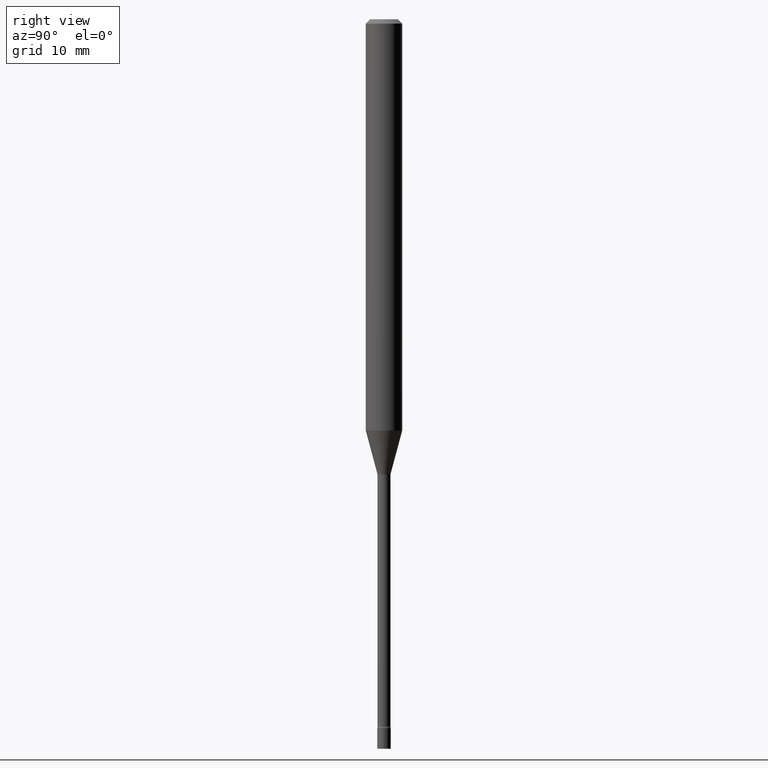
[diagram: clean part render]
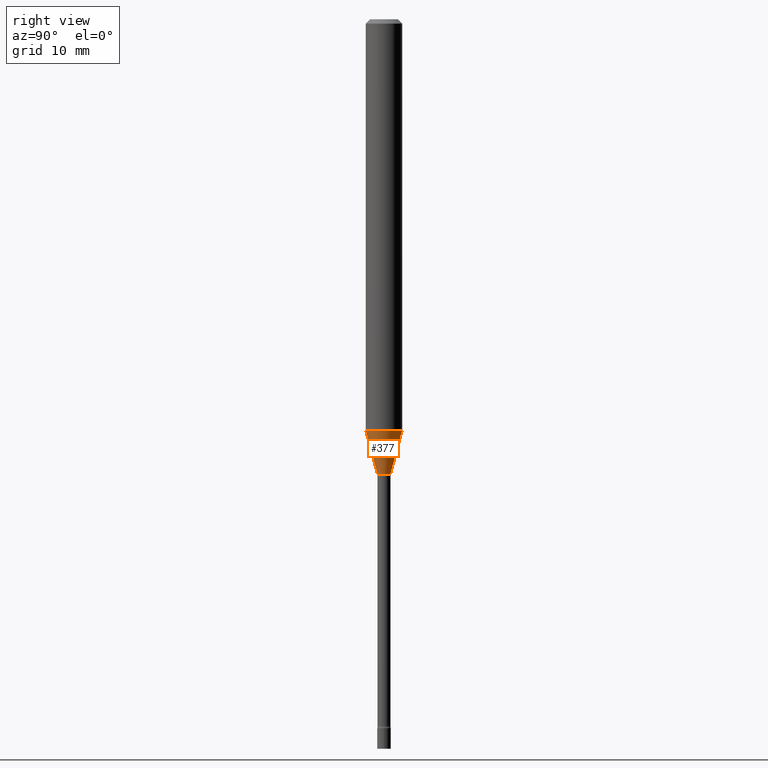
[diagram: same view with one face highlighted and labeled with its STEP entity id]
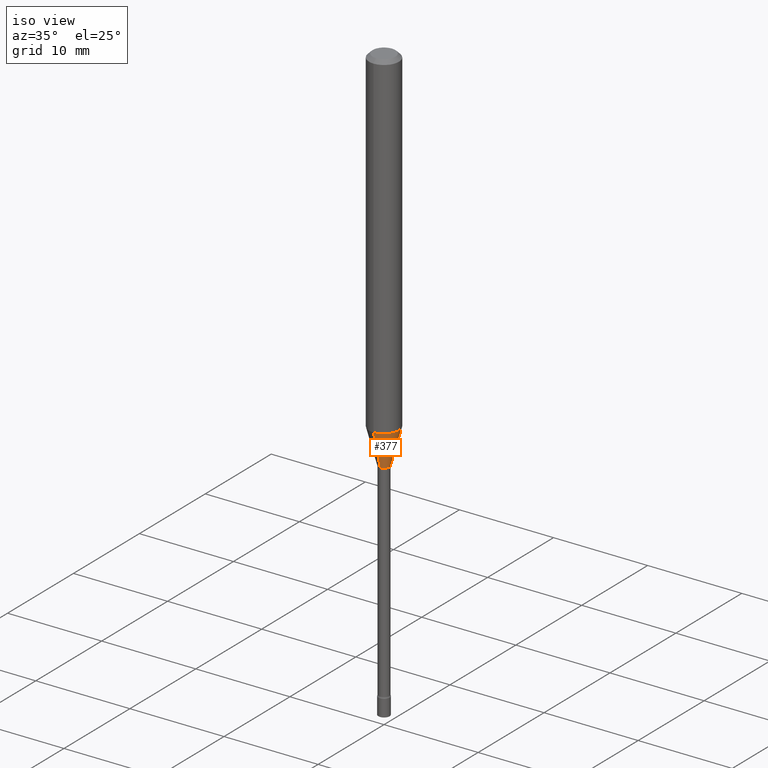
[diagram: same view with one face highlighted and labeled with its STEP entity id]
A machine part, right view. The second image highlights one B-rep face of the part: STEP entity #377.
A second angle (iso view) of the same face is appended — the face is thin or edge-on in the first view.
In plain terms, the highlighted conical surface has half-angle 15 deg.
Its self-contained STEP definition (entity closure, byte-faithful):
#20 = DIRECTION ( 'NONE',  ( -6.982962677686265922E-15, -1.000000000000000000, 4.370956789862821150E-15 ) ) ;
#34 = DIRECTION ( 'NONE',  ( -2.445459864664737566E-29, 3.491494143609276784E-15, 1.000000000000000000 ) ) ;
#40 = CARTESIAN_POINT ( 'NONE',  ( 3.023754139721085035E-16, 0.02261111260565855027, -1.558092501787273321 ) ) ;
#42 = VERTEX_POINT ( 'NONE', #300 ) ;
#60 = CARTESIAN_POINT ( 'NONE',  ( 1.606616180941198289E-16, 0.02261111260565855027, -1.558092501787273321 ) ) ;
#88 = VERTEX_POINT ( 'NONE', #146 ) ;
#100 = FACE_OUTER_BOUND ( 'NONE', #443, .T. ) ;
#102 = CIRCLE ( 'NONE', #403, 0.02261111260566398690 ) ;
#140 = CARTESIAN_POINT ( 'NONE',  ( 3.446203538179899442E-29, -4.920301349084003564E-15, -1.409225147374218112 ) ) ;
#146 = CARTESIAN_POINT ( 'NONE',  ( 4.440892098500968330E-16, 0.06249999999999506645, -1.409225147374218334 ) ) ;
#152 = CARTESIAN_POINT ( 'NONE',  ( 3.810252678555848085E-29, -5.440070845191792507E-15, -1.558092501787273321 ) ) ;
#156 = CIRCLE ( 'NONE', #204, 0.06250000000000000000 ) ;
#193 = EDGE_CURVE ( 'NONE', #316, #88, #156, .T. ) ;
#204 = AXIS2_PLACEMENT_3D ( 'NONE', #140, #460, #20 ) ;
#215 = VECTOR ( 'NONE', #219, 39.37007874015747433 ) ;
#219 = DIRECTION ( 'NONE',  ( 1.839019923739599526E-15, 0.2588190451025248473, 0.9659258262890673130 ) ) ;
#226 = CARTESIAN_POINT ( 'NONE',  ( 3.810252678555848085E-29, -5.440070845191792507E-15, -1.558092501787273321 ) ) ;
#227 = ORIENTED_EDGE ( 'NONE', *, *, #458, .T. ) ;
#235 = CARTESIAN_POINT ( 'NONE',  ( -1.578925554262749888E-16, -0.02261111260566942699, -1.558092501787273321 ) ) ;
#248 = ORIENTED_EDGE ( 'NONE', *, *, #193, .F. ) ;
#261 = DIRECTION ( 'NONE',  ( -2.445459864664737566E-29, 3.491494143609276784E-15, 1.000000000000000000 ) ) ;
#265 = LINE ( 'NONE', #60, #215 ) ;
#271 = ORIENTED_EDGE ( 'NONE', *, *, #425, .T. ) ;
#288 = ORIENTED_EDGE ( 'NONE', *, *, #447, .F. ) ;
#300 = CARTESIAN_POINT ( 'NONE',  ( -1.578925554262749888E-16, -0.02261111260566942699, -1.558092501787273321 ) ) ;
#308 = DIRECTION ( 'NONE',  ( -6.982962677686265922E-15, -1.000000000000000000, 0.000000000000000000 ) ) ;
#314 = DIRECTION ( 'NONE',  ( -6.982962677686265922E-15, -1.000000000000000000, 0.000000000000000000 ) ) ;
#316 = VERTEX_POINT ( 'NONE', #476 ) ;
#360 = DIRECTION ( 'NONE',  ( -1.807323732225328562E-15, -0.2588190451025179639, 0.9659258262890689783 ) ) ;
#364 = LINE ( 'NONE', #235, #477 ) ;
#369 = AXIS2_PLACEMENT_3D ( 'NONE', #226, #261, #308 ) ;
#377 = ADVANCED_FACE ( 'NONE', ( #100 ), #434, .T. ) ;
#403 = AXIS2_PLACEMENT_3D ( 'NONE', #152, #34, #314 ) ;
#425 = EDGE_CURVE ( 'NONE', #502, #88, #265, .T. ) ;
#434 = CONICAL_SURFACE ( 'NONE', #369, 0.02261111260566398690, 0.2617993877991501295 ) ;
#443 = EDGE_LOOP ( 'NONE', ( #227, #271, #248, #288 ) ) ;
#447 = EDGE_CURVE ( 'NONE', #42, #316, #364, .T. ) ;
#458 = EDGE_CURVE ( 'NONE', #42, #502, #102, .T. ) ;
#460 = DIRECTION ( 'NONE',  ( -2.445459864664737566E-29, 3.491494143609276784E-15, 1.000000000000000000 ) ) ;
#476 = CARTESIAN_POINT ( 'NONE',  ( -4.364351673553573540E-16, -0.06250000000000494049, -1.409225147374217890 ) ) ;
#477 = VECTOR ( 'NONE', #360, 39.37007874015749564 ) ;
#502 = VERTEX_POINT ( 'NONE', #40 ) ;